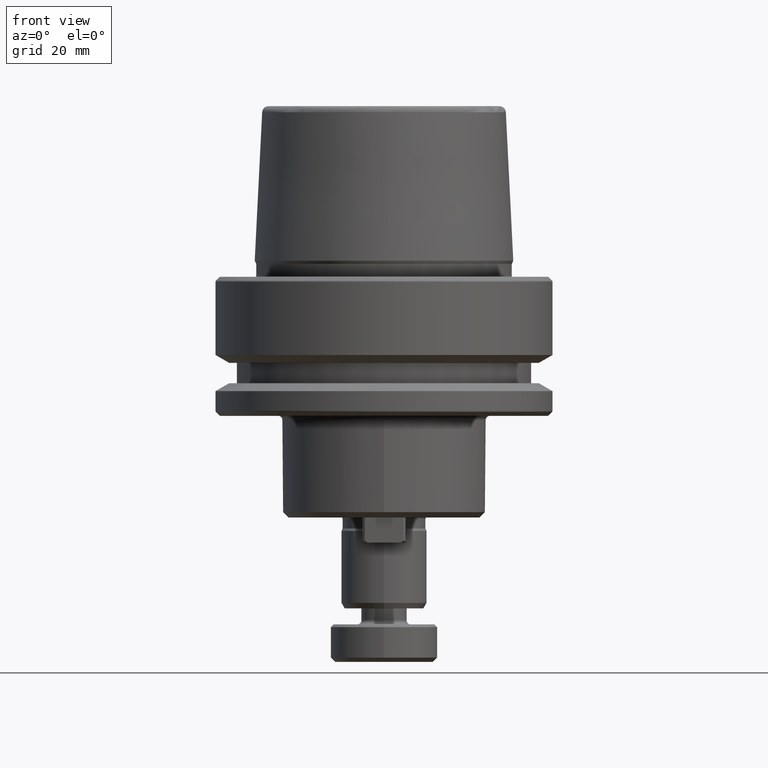
[diagram: clean part render]
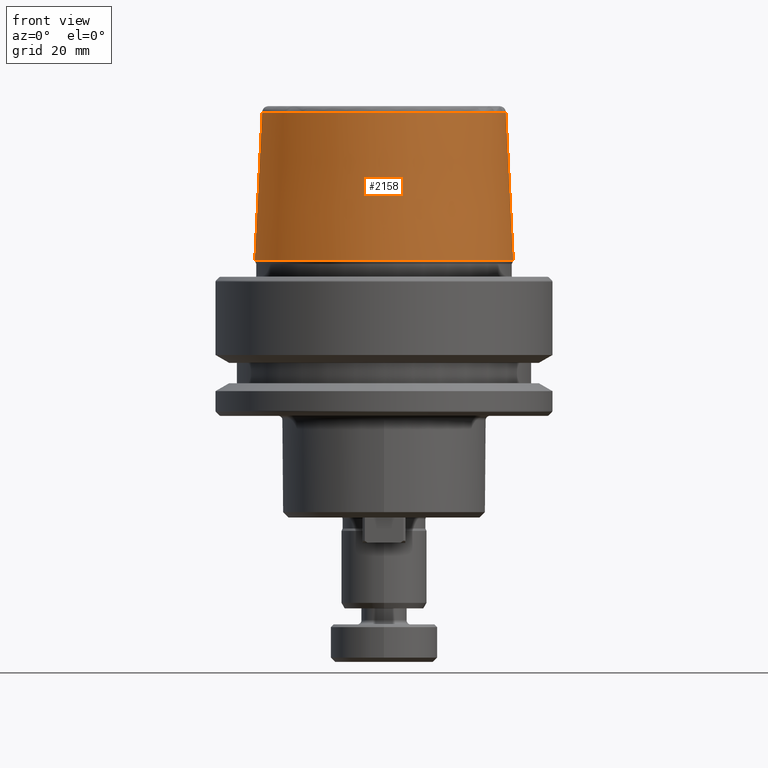
[diagram: same view with one face highlighted and labeled with its STEP entity id]
A machine part, front view. The second image highlights one B-rep face of the part: STEP entity #2158.
In plain terms, the highlighted conical surface has half-angle 2.868 deg.
Its self-contained STEP definition (entity closure, byte-faithful):
#99 = VECTOR ( 'NONE', #1617, 1000.000000000000200 ) ;
#128 = DIRECTION ( 'NONE',  ( 0.0000000000000000000, 0.0000000000000000000, -1.000000000000000000 ) ) ;
#220 = EDGE_CURVE ( 'NONE', #789, #391, #1947, .T. ) ;
#306 = CARTESIAN_POINT ( 'NONE',  ( -24.17032625081241900, 0.0000000000000000000, 3.000000000000002700 ) ) ;
#339 = CARTESIAN_POINT ( 'NONE',  ( 0.0000000000000000000, 0.0000000000000000000, 3.000000000000002700 ) ) ;
#391 = VERTEX_POINT ( 'NONE', #2075 ) ;
#401 = CARTESIAN_POINT ( 'NONE',  ( -22.77957961851797100, 0.0000000000000000000, 30.76004333261571900 ) ) ;
#789 = VERTEX_POINT ( 'NONE', #401 ) ;
#914 = EDGE_CURVE ( 'NONE', #789, #2566, #2359, .T. ) ;
#918 = CARTESIAN_POINT ( 'NONE',  ( -24.17032625081241900, 2.960011267740467600E-015, 3.000000000000002700 ) ) ;
#992 = DIRECTION ( 'NONE',  ( -1.000000000000000000, 0.0000000000000000000, 0.0000000000000000000 ) ) ;
#1065 = FACE_OUTER_BOUND ( 'NONE', #1627, .T. ) ;
#1167 = DIRECTION ( 'NONE',  ( 0.05003611051310812000, 6.127656258166108900E-018, -0.9987474093306675200 ) ) ;
#1185 = DIRECTION ( 'NONE',  ( -0.0000000000000000000, -0.0000000000000000000, 1.000000000000000000 ) ) ;
#1268 = AXIS2_PLACEMENT_3D ( 'NONE', #2493, #1185, #2696 ) ;
#1277 = CIRCLE ( 'NONE', #1268, 24.17032625081241900 ) ;
#1433 = CARTESIAN_POINT ( 'NONE',  ( 0.0000000000000000000, 0.0000000000000000000, 30.76004333261571900 ) ) ;
#1470 = EDGE_CURVE ( 'NONE', #391, #2028, #2703, .T. ) ;
#1617 = DIRECTION ( 'NONE',  ( -0.05003611051310812000, 0.0000000000000000000, -0.9987474093306675200 ) ) ;
#1627 = EDGE_LOOP ( 'NONE', ( #1789, #1957, #1712, #2657 ) ) ;
#1712 = ORIENTED_EDGE ( 'NONE', *, *, #914, .T. ) ;
#1789 = ORIENTED_EDGE ( 'NONE', *, *, #1470, .F. ) ;
#1947 = CIRCLE ( 'NONE', #2112, 22.77957961851797100 ) ;
#1957 = ORIENTED_EDGE ( 'NONE', *, *, #220, .F. ) ;
#2028 = VERTEX_POINT ( 'NONE', #2270 ) ;
#2033 = EDGE_CURVE ( 'NONE', #2566, #2028, #1277, .T. ) ;
#2075 = CARTESIAN_POINT ( 'NONE',  ( 22.77957961851797100, 2.874852597157249900E-015, 30.76004333261571900 ) ) ;
#2112 = AXIS2_PLACEMENT_3D ( 'NONE', #1433, #2525, #2682 ) ;
#2148 = VECTOR ( 'NONE', #1167, 1000.000000000000200 ) ;
#2158 = ADVANCED_FACE ( 'NONE', ( #1065 ), #2596, .T. ) ;
#2270 = CARTESIAN_POINT ( 'NONE',  ( 24.17032625081241900, 0.0000000000000000000, 3.000000000000002700 ) ) ;
#2359 = LINE ( 'NONE', #306, #99 ) ;
#2479 = CARTESIAN_POINT ( 'NONE',  ( 24.17032625081241900, 2.960011267740467600E-015, 3.000000000000002700 ) ) ;
#2493 = CARTESIAN_POINT ( 'NONE',  ( 0.0000000000000000000, 0.0000000000000000000, 3.000000000000002700 ) ) ;
#2525 = DIRECTION ( 'NONE',  ( -0.0000000000000000000, -0.0000000000000000000, 1.000000000000000000 ) ) ;
#2566 = VERTEX_POINT ( 'NONE', #918 ) ;
#2596 = CONICAL_SURFACE ( 'NONE', #2710, 24.17032625081241900, 0.05005701257456005000 ) ;
#2657 = ORIENTED_EDGE ( 'NONE', *, *, #2033, .T. ) ;
#2682 = DIRECTION ( 'NONE',  ( 1.000000000000000000, 0.0000000000000000000, 0.0000000000000000000 ) ) ;
#2696 = DIRECTION ( 'NONE',  ( 1.000000000000000000, 0.0000000000000000000, 0.0000000000000000000 ) ) ;
#2703 = LINE ( 'NONE', #2479, #2148 ) ;
#2710 = AXIS2_PLACEMENT_3D ( 'NONE', #339, #128, #992 ) ;